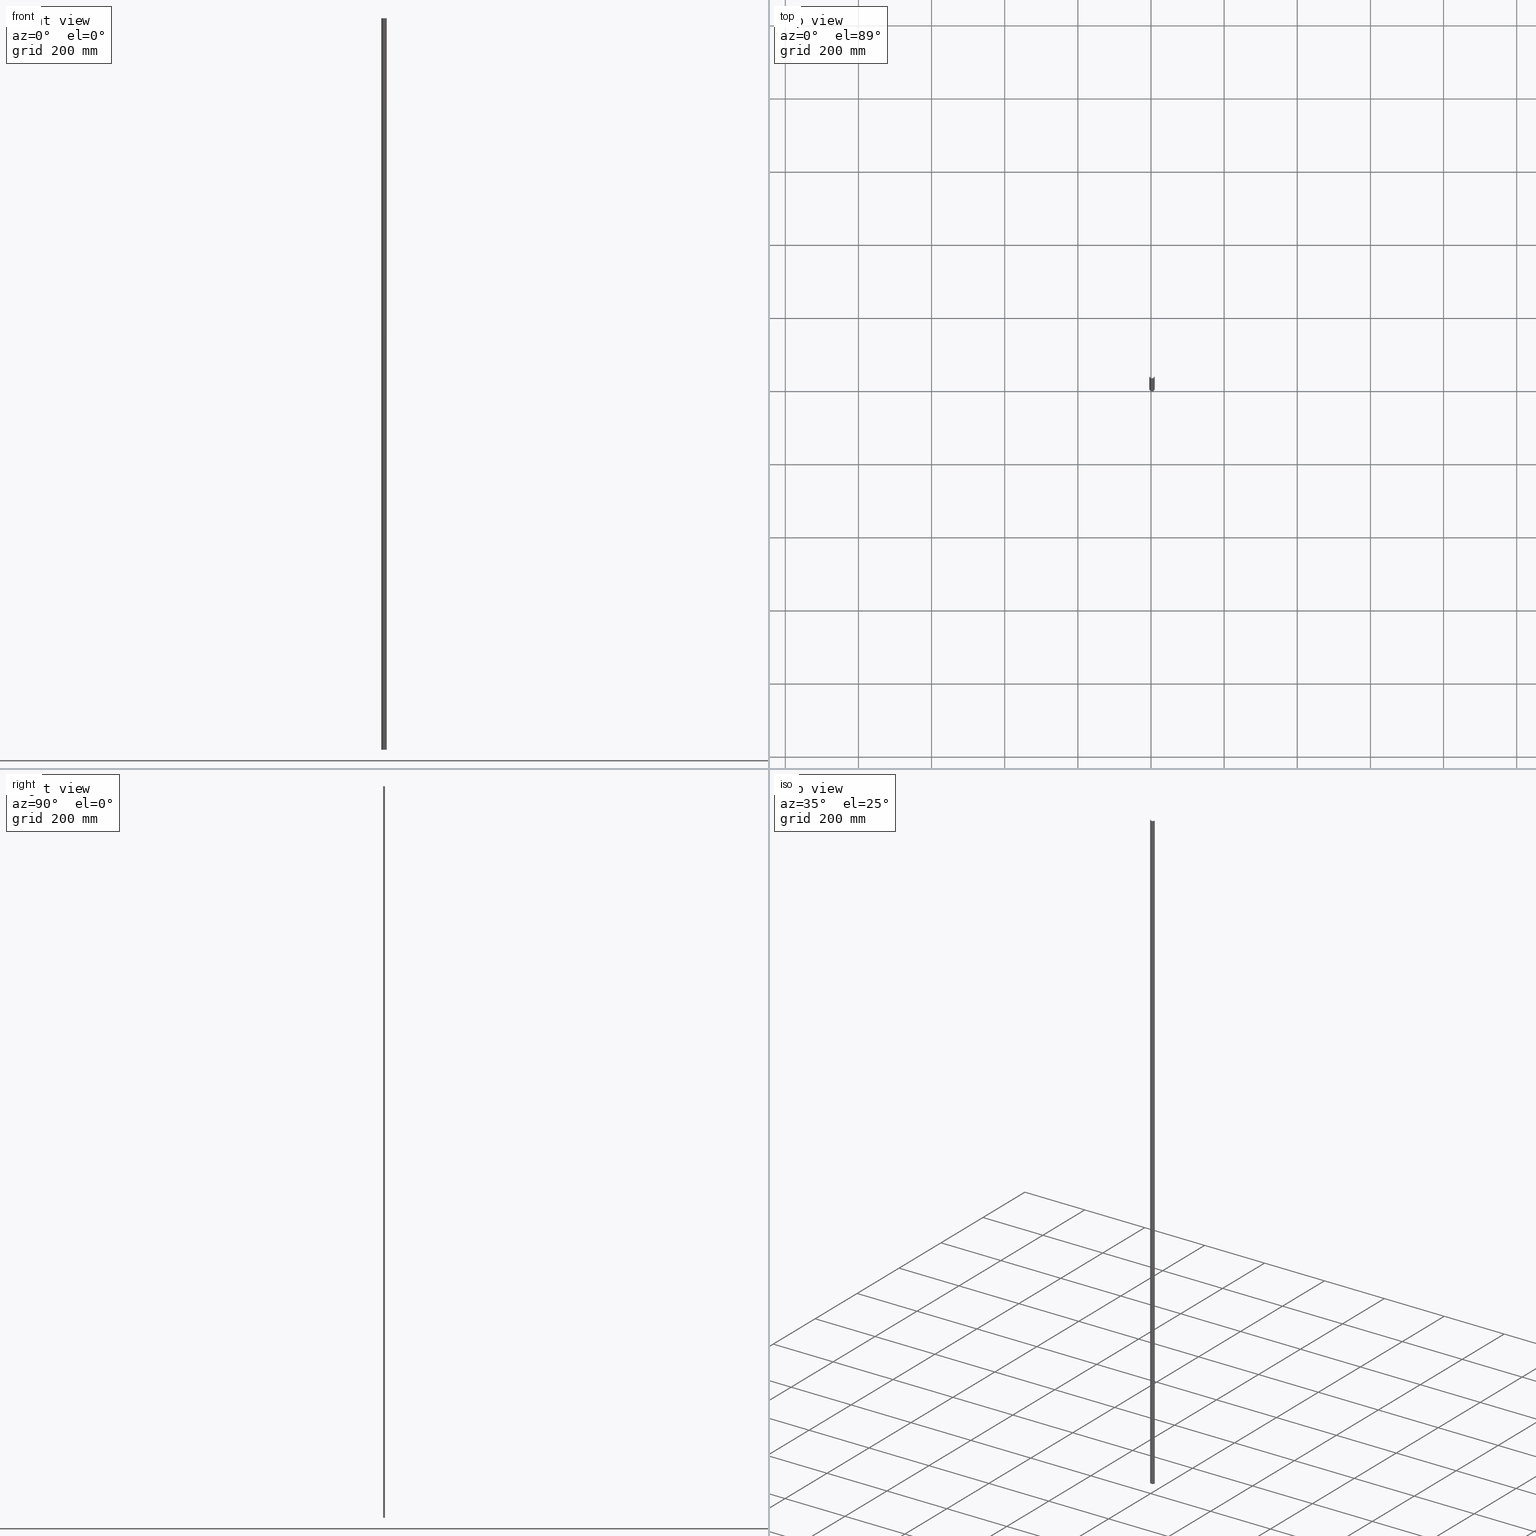
[diagram: canonical four-view strip — front | top / right | iso, engineering-drawing reading convention]
A machine part, canonical four-view strip (front | top / right | iso — engineering-drawing reading convention). The complete STEP part file that produces these views, byte-faithful:
ISO-10303-21;
HEADER;
FILE_DESCRIPTION (( 'STEP AP203' ),
    '1' );
FILE_NAME ('15x5,5 D�z Montaj Raylar� - 2 m.STEP',
    '2019-03-29T08:13:46',
    ( '' ),
    ( '' ),
    'SwSTEP 2.0',
    'SolidWorks 2011',
    '' );
FILE_SCHEMA (( 'CONFIG_CONTROL_DESIGN' ));
ENDSEC;

DATA;
#1 = UNCERTAINTY_MEASURE_WITH_UNIT (LENGTH_MEASURE( 1.000000000000000100E-005 ), #669, 'distance_accuracy_value', 'NONE');
#2 = PRODUCT_DEFINITION_SHAPE ( 'NONE', 'NONE',  #770 ) ;
#3 = DESIGN_CONTEXT ( 'detailed design', #685, 'design' ) ;
#4 = MANIFOLD_SOLID_BREP ( 'Birle�tir1', #114 ) ;
#5 = PRODUCT ( '15x5,5 D�z Montaj Raylar� - 2 m', '15x5,5 D�z Montaj Raylar� - 2 m', '', ( #677 ) ) ;
#6 = AXIS2_PLACEMENT_3D ( 'NONE', #442, #403, #435 ) ;
#7 = VECTOR ( 'NONE', #428, 1000.000000000000000 ) ;
#8 = VECTOR ( 'NONE', #433, 1000.000000000000000 ) ;
#9 = VECTOR ( 'NONE', #443, 1000.000000000000000 ) ;
#10 = VECTOR ( 'NONE', #409, 1000.000000000000000 ) ;
#11 = CIRCLE ( 'NONE', #6, 1.500000000000167000 ) ;
#12 = VECTOR ( 'NONE', #444, 1000.000000000000000 ) ;
#13 = VECTOR ( 'NONE', #456, 1000.000000000000000 ) ;
#14 = VECTOR ( 'NONE', #464, 1000.000000000000000 ) ;
#15 = VECTOR ( 'NONE', #426, 1000.000000000000000 ) ;
#16 = CIRCLE ( 'NONE', #40, 1.500000000000167000 ) ;
#17 = VECTOR ( 'NONE', #528, 1000.000000000000000 ) ;
#18 = AXIS2_PLACEMENT_3D ( 'NONE', #509, #536, #532 ) ;
#19 = AXIS2_PLACEMENT_3D ( 'NONE', #453, #448, #483 ) ;
#20 = VECTOR ( 'NONE', #562, 1000.000000000000000 ) ;
#21 = AXIS2_PLACEMENT_3D ( 'NONE', #570, #556, #585 ) ;
#22 = AXIS2_PLACEMENT_3D ( 'NONE', #572, #574, #581 ) ;
#23 = CIRCLE ( 'NONE', #48, 1.200000000000588600 ) ;
#24 = VECTOR ( 'NONE', #489, 1000.000000000000000 ) ;
#25 = VECTOR ( 'NONE', #472, 1000.000000000000000 ) ;
#26 = VECTOR ( 'NONE', #467, 1000.000000000000000 ) ;
#27 = AXIS2_PLACEMENT_3D ( 'NONE', #466, #469, #486 ) ;
#28 = CIRCLE ( 'NONE', #32, 1.500000000000339500 ) ;
#29 = VECTOR ( 'NONE', #535, 1000.000000000000000 ) ;
#30 = VECTOR ( 'NONE', #533, 1000.000000000000000 ) ;
#31 = VECTOR ( 'NONE', #474, 1000.000000000000000 ) ;
#32 = AXIS2_PLACEMENT_3D ( 'NONE', #507, #516, #491 ) ;
#33 = VECTOR ( 'NONE', #415, 1000.000000000000000 ) ;
#34 = AXIS2_PLACEMENT_3D ( 'NONE', #476, #455, #471 ) ;
#35 = VECTOR ( 'NONE', #583, 1000.000000000000000 ) ;
#36 = VECTOR ( 'NONE', #463, 1000.000000000000000 ) ;
#37 = AXIS2_PLACEMENT_3D ( 'NONE', #502, #521, #531 ) ;
#38 = CIRCLE ( 'NONE', #64, 1.200000000000089900 ) ;
#39 = CIRCLE ( 'NONE', #34, 2.500000000000280700 ) ;
#40 = AXIS2_PLACEMENT_3D ( 'NONE', #406, #430, #423 ) ;
#41 = CIRCLE ( 'NONE', #63, 2.200000000000120100 ) ;
#42 = VECTOR ( 'NONE', #411, 1000.000000000000000 ) ;
#43 = VECTOR ( 'NONE', #461, 1000.000000000000000 ) ;
#44 = VECTOR ( 'NONE', #571, 1000.000000000000000 ) ;
#45 = CIRCLE ( 'NONE', #46, 2.500000000000150500 ) ;
#46 = AXIS2_PLACEMENT_3D ( 'NONE', #576, #537, #539 ) ;
#47 = VECTOR ( 'NONE', #534, 1000.000000000000000 ) ;
#48 = AXIS2_PLACEMENT_3D ( 'NONE', #549, #557, #567 ) ;
#49 = CIRCLE ( 'NONE', #27, 2.200000000000563300 ) ;
#50 = VECTOR ( 'NONE', #543, 1000.000000000000000 ) ;
#51 = CIRCLE ( 'NONE', #53, 2.500000000000280700 ) ;
#52 = VECTOR ( 'NONE', #490, 1000.000000000000000 ) ;
#53 = AXIS2_PLACEMENT_3D ( 'NONE', #575, #541, #544 ) ;
#54 = VECTOR ( 'NONE', #618, 1000.000000000000000 ) ;
#55 = VECTOR ( 'NONE', #413, 1000.000000000000000 ) ;
#56 = VECTOR ( 'NONE', #417, 1000.000000000000000 ) ;
#57 = VECTOR ( 'NONE', #454, 1000.000000000000000 ) ;
#58 = VECTOR ( 'NONE', #458, 1000.000000000000000 ) ;
#59 = CIRCLE ( 'NONE', #19, 2.200000000000120100 ) ;
#60 = VECTOR ( 'NONE', #504, 1000.000000000000000 ) ;
#61 = VECTOR ( 'NONE', #500, 1000.000000000000000 ) ;
#62 = VECTOR ( 'NONE', #485, 1000.000000000000000 ) ;
#63 = AXIS2_PLACEMENT_3D ( 'NONE', #492, #518, #499 ) ;
#64 = AXIS2_PLACEMENT_3D ( 'NONE', #501, #513, #530 ) ;
#65 = AXIS2_PLACEMENT_3D ( 'NONE', #517, #496, #515 ) ;
#66 = VECTOR ( 'NONE', #580, 1000.000000000000000 ) ;
#67 = CIRCLE ( 'NONE', #65, 1.200000000000089900 ) ;
#68 = VECTOR ( 'NONE', #506, 1000.000000000000000 ) ;
#69 = AXIS2_PLACEMENT_3D ( 'NONE', #494, #495, #514 ) ;
#70 = LOCAL_TIME ( 11, 13, 46.00000000000000000, #134 ) ;
#71 = VECTOR ( 'NONE', #627, 1000.000000000000000 ) ;
#72 = AXIS2_PLACEMENT_3D ( 'NONE', #674, #675, #679 ) ;
#73 = AXIS2_PLACEMENT_3D ( 'NONE', #592, #588, #599 ) ;
#74 = AXIS2_PLACEMENT_3D ( 'NONE', #659, #664, #644 ) ;
#75 = AXIS2_PLACEMENT_3D ( 'NONE', #663, #661, #651 ) ;
#76 = APPROVAL_PERSON_ORGANIZATION ( #681, #756, #683 ) ;
#77 = AXIS2_PLACEMENT_3D ( 'NONE', #547, #552, #546 ) ;
#78 = AXIS2_PLACEMENT_3D ( 'NONE', #650, #653, #645 ) ;
#79 = AXIS2_PLACEMENT_3D ( 'NONE', #633, #587, #600 ) ;
#80 = CC_DESIGN_APPROVAL ( #764, ( #93 ) ) ;
#81 = AXIS2_PLACEMENT_3D ( 'NONE', #606, #623, #597 ) ;
#82 = AXIS2_PLACEMENT_3D ( 'NONE', #553, #582, #550 ) ;
#83 = AXIS2_PLACEMENT_3D ( 'NONE', #595, #616, #635 ) ;
#84 = AXIS2_PLACEMENT_3D ( 'NONE', #602, #614, #626 ) ;
#85 = AXIS2_PLACEMENT_3D ( 'NONE', #668, #666, #642 ) ;
#86 = AXIS2_PLACEMENT_3D ( 'NONE', #621, #609, #589 ) ;
#87 = AXIS2_PLACEMENT_3D ( 'NONE', #605, #594, #617 ) ;
#88 =( GEOMETRIC_REPRESENTATION_CONTEXT ( 3 ) GLOBAL_UNCERTAINTY_ASSIGNED_CONTEXT ( ( #1 ) ) GLOBAL_UNIT_ASSIGNED_CONTEXT ( ( #669, #671, #672 ) ) REPRESENTATION_CONTEXT ( 'NONE', 'WORKASPACE' ) );
#89 = AXIS2_PLACEMENT_3D ( 'NONE', #538, #579, #548 ) ;
#90 = LOCAL_TIME ( 11, 13, 46.00000000000000000, #680 ) ;
#91 = LOCAL_TIME ( 11, 13, 46.00000000000000000, #124 ) ;
#92 = APPROVAL_PERSON_ORGANIZATION ( #129, #774, #130 ) ;
#93 = SECURITY_CLASSIFICATION ( '', '', #136 ) ;
#94 = CIRCLE ( 'NONE', #81, 2.200000000000563300 ) ;
#95 = AXIS2_PLACEMENT_3D ( 'NONE', #654, #648, #643 ) ;
#96 = ORGANIZATION ( 'BEL�RT�LMEM��', 'BEL�RT�LMEM��', '' ) ;
#97 = LOCAL_TIME ( 11, 13, 46.00000000000000000, #143 ) ;
#98 = AXIS2_PLACEMENT_3D ( 'NONE', #657, #647, #652 ) ;
#99 = CIRCLE ( 'NONE', #95, 1.200000000000588600 ) ;
#100 = CC_DESIGN_APPROVAL ( #756, ( #770 ) ) ;
#101 = PRODUCT_DEFINITION_FORMATION_WITH_SPECIFIED_SOURCE ( '     Herhangi', '', #5, .NOT_KNOWN. ) ;
#102 = AXIS2_PLACEMENT_3D ( 'NONE', #586, #593, #619 ) ;
#103 = APPROVAL_PERSON_ORGANIZATION ( #131, #764, #154 ) ;
#104 = AXIS2_PLACEMENT_3D ( 'NONE', #638, #649, #665 ) ;
#105 = LOCAL_TIME ( 11, 13, 46.00000000000000000, #151 ) ;
#106 = CC_DESIGN_APPROVAL ( #774, ( #101 ) ) ;
#107 = AXIS2_PLACEMENT_3D ( 'NONE', #610, #601, #598 ) ;
#108 = CC_DESIGN_SECURITY_CLASSIFICATION ( #93, ( #101 ) ) ;
#109 = CIRCLE ( 'NONE', #110, 1.500000000000339500 ) ;
#110 = AXIS2_PLACEMENT_3D ( 'NONE', #400, #363, #361 ) ;
#111 = VECTOR ( 'NONE', #354, 1000.000000000000000 ) ;
#112 = VECTOR ( 'NONE', #412, 1000.000000000000000 ) ;
#113 = AXIS2_PLACEMENT_3D ( 'NONE', #440, #432, #441 ) ;
#114 = CLOSED_SHELL ( 'NONE', ( #776, #771, #739, #778, #777, #761, #772, #734, #737, #753, #769, #744, #773, #759, #751, #736, #752, #750, #779, #767, #765, #754 ) ) ;
#115 = VECTOR ( 'NONE', #374, 1000.000000000000000 ) ;
#116 = VECTOR ( 'NONE', #386, 1000.000000000000000 ) ;
#117 = VECTOR ( 'NONE', #358, 1000.000000000000000 ) ;
#118 = VECTOR ( 'NONE', #366, 1000.000000000000000 ) ;
#119 = CIRCLE ( 'NONE', #113, 2.500000000000150500 ) ;
#120 = VECTOR ( 'NONE', #414, 1000.000000000000000 ) ;
#121 = VECTOR ( 'NONE', #394, 1000.000000000000000 ) ;
#122 = PERSON_AND_ORGANIZATION ( #780, #96 ) ;
#123 = PERSON_AND_ORGANIZATION_ROLE ( 'creator' ) ;
#124 = COORDINATED_UNIVERSAL_TIME_OFFSET ( 3, 0, .AHEAD. ) ;
#125 = CALENDAR_DATE ( 2019, 29, 3 ) ;
#126 = APPROVAL_DATE_TIME ( #127, #756 ) ;
#127 = DATE_AND_TIME ( #125, #90 ) ;
#128 = APPROVAL_STATUS ( 'not_yet_approved' ) ;
#129 = PERSON_AND_ORGANIZATION ( #780, #96 ) ;
#130 = APPROVAL_ROLE ( '' ) ;
#131 = PERSON_AND_ORGANIZATION ( #780, #96 ) ;
#132 = DATE_TIME_ROLE ( 'creation_date' ) ;
#133 = CALENDAR_DATE ( 2019, 29, 3 ) ;
#134 = COORDINATED_UNIVERSAL_TIME_OFFSET ( 3, 0, .AHEAD. ) ;
#135 = CALENDAR_DATE ( 2019, 29, 3 ) ;
#136 = SECURITY_CLASSIFICATION_LEVEL ( 'unclassified' ) ;
#137 = PERSON_AND_ORGANIZATION ( #780, #96 ) ;
#138 = APPROVAL_DATE_TIME ( #139, #774 ) ;
#139 = DATE_AND_TIME ( #142, #105 ) ;
#140 = PERSON_AND_ORGANIZATION ( #780, #96 ) ;
#141 = APPROVAL_DATE_TIME ( #145, #764 ) ;
#142 = CALENDAR_DATE ( 2019, 29, 3 ) ;
#143 = COORDINATED_UNIVERSAL_TIME_OFFSET ( 3, 0, .AHEAD. ) ;
#144 = PERSON_AND_ORGANIZATION ( #780, #96 ) ;
#145 = DATE_AND_TIME ( #133, #97 ) ;
#146 = DATE_AND_TIME ( #149, #70 ) ;
#147 = DATE_TIME_ROLE ( 'classification_date' ) ;
#148 = APPROVAL_STATUS ( 'not_yet_approved' ) ;
#149 = CALENDAR_DATE ( 2019, 29, 3 ) ;
#150 = DATE_AND_TIME ( #135, #91 ) ;
#151 = COORDINATED_UNIVERSAL_TIME_OFFSET ( 3, 0, .AHEAD. ) ;
#152 = PERSON_AND_ORGANIZATION_ROLE ( 'creator' ) ;
#153 = PERSON_AND_ORGANIZATION_ROLE ( 'classification_officer' ) ;
#154 = APPROVAL_ROLE ( '' ) ;
#155 = PERSON_AND_ORGANIZATION_ROLE ( 'design_supplier' ) ;
#156 = CARTESIAN_POINT ( 'NONE',  ( -2.500000000000290000, 3.100000000000202600, 0.0000000000000000000 ) ) ;
#157 = EDGE_LOOP ( 'NONE', ( #244, #263, #249, #281 ) ) ;
#158 = EDGE_LOOP ( 'NONE', ( #318, #265, #319, #324 ) ) ;
#159 = EDGE_LOOP ( 'NONE', ( #241, #282, #267, #225 ) ) ;
#160 = EDGE_LOOP ( 'NONE', ( #233, #254, #237, #257 ) ) ;
#161 = CARTESIAN_POINT ( 'NONE',  ( -3.700000000000881300, 5.300000000000766300, 2000.000000000000000 ) ) ;
#162 = EDGE_LOOP ( 'NONE', ( #320, #306, #314, #279 ) ) ;
#163 = EDGE_LOOP ( 'NONE', ( #308, #325, #278, #347 ) ) ;
#164 = VERTEX_POINT ( 'NONE', #294 ) ;
#165 = VERTEX_POINT ( 'NONE', #303 ) ;
#166 = EDGE_LOOP ( 'NONE', ( #287, #345, #271, #301 ) ) ;
#167 = VERTEX_POINT ( 'NONE', #295 ) ;
#168 = VERTEX_POINT ( 'NONE', #156 ) ;
#169 = VERTEX_POINT ( 'NONE', #161 ) ;
#170 = VERTEX_POINT ( 'NONE', #304 ) ;
#171 = EDGE_LOOP ( 'NONE', ( #231, #250, #243, #246 ) ) ;
#172 = VERTEX_POINT ( 'NONE', #310 ) ;
#173 = EDGE_LOOP ( 'NONE', ( #327, #291, #290, #315, #300, #328, #293, #329, #332, #342, #292, #331, #239, #262, #240, #275, #224, #258, #256, #227 ) ) ;
#174 = EDGE_LOOP ( 'NONE', ( #235, #245, #222, #210 ) ) ;
#175 = VERTEX_POINT ( 'NONE', #343 ) ;
#176 = VERTEX_POINT ( 'NONE', #297 ) ;
#177 = VERTEX_POINT ( 'NONE', #344 ) ;
#178 = VERTEX_POINT ( 'NONE', #302 ) ;
#179 = EDGE_LOOP ( 'NONE', ( #269, #339, #313, #261 ) ) ;
#180 = VERTEX_POINT ( 'NONE', #389 ) ;
#181 = VERTEX_POINT ( 'NONE', #376 ) ;
#182 = EDGE_LOOP ( 'NONE', ( #268, #232, #223, #229 ) ) ;
#183 = VERTEX_POINT ( 'NONE', #399 ) ;
#184 = VERTEX_POINT ( 'NONE', #350 ) ;
#185 = EDGE_LOOP ( 'NONE', ( #285, #311, #296, #336 ) ) ;
#186 = EDGE_LOOP ( 'NONE', ( #238, #234, #251, #247 ) ) ;
#187 = EDGE_LOOP ( 'NONE', ( #277, #253, #270, #260 ) ) ;
#188 = VERTEX_POINT ( 'NONE', #372 ) ;
#189 = VERTEX_POINT ( 'NONE', #360 ) ;
#190 = VERTEX_POINT ( 'NONE', #396 ) ;
#191 = VERTEX_POINT ( 'NONE', #371 ) ;
#192 = VERTEX_POINT ( 'NONE', #383 ) ;
#193 = VERTEX_POINT ( 'NONE', #364 ) ;
#194 = VERTEX_POINT ( 'NONE', #377 ) ;
#195 = VERTEX_POINT ( 'NONE', #352 ) ;
#196 = VERTEX_POINT ( 'NONE', #369 ) ;
#197 = EDGE_LOOP ( 'NONE', ( #333, #264, #280, #309 ) ) ;
#198 = VERTEX_POINT ( 'NONE', #357 ) ;
#199 = VERTEX_POINT ( 'NONE', #355 ) ;
#200 = EDGE_LOOP ( 'NONE', ( #236, #252, #230, #242 ) ) ;
#201 = VERTEX_POINT ( 'NONE', #351 ) ;
#202 = VERTEX_POINT ( 'NONE', #387 ) ;
#203 = VERTEX_POINT ( 'NONE', #375 ) ;
#204 = VERTEX_POINT ( 'NONE', #356 ) ;
#205 = EDGE_LOOP ( 'NONE', ( #259, #226, #274, #273 ) ) ;
#206 = VERTEX_POINT ( 'NONE', #384 ) ;
#207 = VERTEX_POINT ( 'NONE', #378 ) ;
#208 = VERTEX_POINT ( 'NONE', #379 ) ;
#209 = VERTEX_POINT ( 'NONE', #367 ) ;
#210 = ORIENTED_EDGE ( 'NONE', *, *, #768, .F. ) ;
#211 = VERTEX_POINT ( 'NONE', #397 ) ;
#212 = VERTEX_POINT ( 'NONE', #373 ) ;
#213 = EDGE_LOOP ( 'NONE', ( #338, #272, #335, #340 ) ) ;
#214 = VERTEX_POINT ( 'NONE', #385 ) ;
#215 = VERTEX_POINT ( 'NONE', #365 ) ;
#216 = VERTEX_POINT ( 'NONE', #380 ) ;
#217 = EDGE_LOOP ( 'NONE', ( #321, #266, #286, #312, #348, #284, #299, #276, #288, #307, #283, #341, #322, #289, #323, #316, #337, #326, #317, #298 ) ) ;
#218 = EDGE_LOOP ( 'NONE', ( #221, #248, #228, #255 ) ) ;
#219 = VERTEX_POINT ( 'NONE', #353 ) ;
#220 = EDGE_LOOP ( 'NONE', ( #305, #330, #346, #334 ) ) ;
#221 = ORIENTED_EDGE ( 'NONE', *, *, #692, .F. ) ;
#222 = ORIENTED_EDGE ( 'NONE', *, *, #755, .F. ) ;
#223 = ORIENTED_EDGE ( 'NONE', *, *, #711, .F. ) ;
#224 = ORIENTED_EDGE ( 'NONE', *, *, #718, .T. ) ;
#225 = ORIENTED_EDGE ( 'NONE', *, *, #713, .T. ) ;
#226 = ORIENTED_EDGE ( 'NONE', *, *, #714, .F. ) ;
#227 = ORIENTED_EDGE ( 'NONE', *, *, #707, .T. ) ;
#228 = ORIENTED_EDGE ( 'NONE', *, *, #697, .F. ) ;
#229 = ORIENTED_EDGE ( 'NONE', *, *, #726, .T. ) ;
#230 = ORIENTED_EDGE ( 'NONE', *, *, #698, .F. ) ;
#231 = ORIENTED_EDGE ( 'NONE', *, *, #727, .F. ) ;
#232 = ORIENTED_EDGE ( 'NONE', *, *, #688, .F. ) ;
#233 = ORIENTED_EDGE ( 'NONE', *, *, #729, .F. ) ;
#234 = ORIENTED_EDGE ( 'NONE', *, *, #715, .F. ) ;
#235 = ORIENTED_EDGE ( 'NONE', *, *, #693, .F. ) ;
#236 = ORIENTED_EDGE ( 'NONE', *, *, #702, .F. ) ;
#237 = ORIENTED_EDGE ( 'NONE', *, *, #732, .F. ) ;
#238 = ORIENTED_EDGE ( 'NONE', *, *, #720, .T. ) ;
#239 = ORIENTED_EDGE ( 'NONE', *, *, #704, .F. ) ;
#240 = ORIENTED_EDGE ( 'NONE', *, *, #719, .F. ) ;
#241 = ORIENTED_EDGE ( 'NONE', *, *, #723, .F. ) ;
#242 = ORIENTED_EDGE ( 'NONE', *, *, #714, .T. ) ;
#243 = ORIENTED_EDGE ( 'NONE', *, *, #700, .T. ) ;
#244 = ORIENTED_EDGE ( 'NONE', *, *, #710, .T. ) ;
#245 = ORIENTED_EDGE ( 'NONE', *, *, #738, .F. ) ;
#246 = ORIENTED_EDGE ( 'NONE', *, *, #717, .F. ) ;
#247 = ORIENTED_EDGE ( 'NONE', *, *, #707, .F. ) ;
#248 = ORIENTED_EDGE ( 'NONE', *, *, #733, .T. ) ;
#249 = ORIENTED_EDGE ( 'NONE', *, *, #749, .T. ) ;
#250 = ORIENTED_EDGE ( 'NONE', *, *, #689, .F. ) ;
#251 = ORIENTED_EDGE ( 'NONE', *, *, #712, .F. ) ;
#252 = ORIENTED_EDGE ( 'NONE', *, *, #716, .T. ) ;
#253 = ORIENTED_EDGE ( 'NONE', *, *, #713, .F. ) ;
#254 = ORIENTED_EDGE ( 'NONE', *, *, #686, .F. ) ;
#255 = ORIENTED_EDGE ( 'NONE', *, *, #687, .F. ) ;
#256 = ORIENTED_EDGE ( 'NONE', *, *, #730, .F. ) ;
#257 = ORIENTED_EDGE ( 'NONE', *, *, #716, .F. ) ;
#258 = ORIENTED_EDGE ( 'NONE', *, *, #697, .T. ) ;
#259 = ORIENTED_EDGE ( 'NONE', *, *, #721, .F. ) ;
#260 = ORIENTED_EDGE ( 'NONE', *, *, #696, .F. ) ;
#261 = ORIENTED_EDGE ( 'NONE', *, *, #726, .F. ) ;
#262 = ORIENTED_EDGE ( 'NONE', *, *, #689, .T. ) ;
#263 = ORIENTED_EDGE ( 'NONE', *, *, #738, .T. ) ;
#264 = ORIENTED_EDGE ( 'NONE', *, *, #686, .T. ) ;
#265 = ORIENTED_EDGE ( 'NONE', *, *, #720, .F. ) ;
#266 = ORIENTED_EDGE ( 'NONE', *, *, #703, .T. ) ;
#267 = ORIENTED_EDGE ( 'NONE', *, *, #718, .F. ) ;
#268 = ORIENTED_EDGE ( 'NONE', *, *, #695, .F. ) ;
#269 = ORIENTED_EDGE ( 'NONE', *, *, #691, .F. ) ;
#270 = ORIENTED_EDGE ( 'NONE', *, *, #725, .F. ) ;
#271 = ORIENTED_EDGE ( 'NONE', *, *, #731, .F. ) ;
#272 = ORIENTED_EDGE ( 'NONE', *, *, #700, .F. ) ;
#273 = ORIENTED_EDGE ( 'NONE', *, *, #690, .T. ) ;
#274 = ORIENTED_EDGE ( 'NONE', *, *, #705, .F. ) ;
#275 = ORIENTED_EDGE ( 'NONE', *, *, #725, .T. ) ;
#276 = ORIENTED_EDGE ( 'NONE', *, *, #721, .T. ) ;
#277 = ORIENTED_EDGE ( 'NONE', *, *, #706, .F. ) ;
#278 = ORIENTED_EDGE ( 'NONE', *, *, #709, .T. ) ;
#279 = ORIENTED_EDGE ( 'NONE', *, *, #748, .T. ) ;
#280 = ORIENTED_EDGE ( 'NONE', *, *, #766, .F. ) ;
#281 = ORIENTED_EDGE ( 'NONE', *, *, #740, .T. ) ;
#282 = ORIENTED_EDGE ( 'NONE', *, *, #687, .T. ) ;
#283 = ORIENTED_EDGE ( 'NONE', *, *, #749, .F. ) ;
#284 = ORIENTED_EDGE ( 'NONE', *, *, #729, .T. ) ;
#285 = ORIENTED_EDGE ( 'NONE', *, *, #694, .T. ) ;
#286 = ORIENTED_EDGE ( 'NONE', *, *, #691, .T. ) ;
#287 = ORIENTED_EDGE ( 'NONE', *, *, #719, .T. ) ;
#288 = ORIENTED_EDGE ( 'NONE', *, *, #775, .T. ) ;
#289 = ORIENTED_EDGE ( 'NONE', *, *, #715, .T. ) ;
#290 = ORIENTED_EDGE ( 'NONE', *, *, #710, .F. ) ;
#291 = ORIENTED_EDGE ( 'NONE', *, *, #755, .T. ) ;
#292 = ORIENTED_EDGE ( 'NONE', *, *, #724, .F. ) ;
#293 = ORIENTED_EDGE ( 'NONE', *, *, #698, .T. ) ;
#294 = CARTESIAN_POINT ( 'NONE',  ( -3.700000000000618800, 4.300000000000789400, 0.0000000000000000000 ) ) ;
#295 = CARTESIAN_POINT ( 'NONE',  ( 10.24999999999941000, 4.300000000000003400, 2000.000000000000000 ) ) ;
#296 = ORIENTED_EDGE ( 'NONE', *, *, #745, .F. ) ;
#297 = CARTESIAN_POINT ( 'NONE',  ( 5.499999999999274400, 1.299999999999992700, 2000.000000000000000 ) ) ;
#298 = ORIENTED_EDGE ( 'NONE', *, *, #717, .T. ) ;
#299 = ORIENTED_EDGE ( 'NONE', *, *, #702, .T. ) ;
#300 = ORIENTED_EDGE ( 'NONE', *, *, #747, .F. ) ;
#301 = ORIENTED_EDGE ( 'NONE', *, *, #696, .T. ) ;
#302 = CARTESIAN_POINT ( 'NONE',  ( -8.443996105043881800E-015, 0.2999999999999992700, 0.0000000000000000000 ) ) ;
#303 = CARTESIAN_POINT ( 'NONE',  ( 6.999999999999385400, 2.800000000000133900, 2000.000000000000000 ) ) ;
#304 = CARTESIAN_POINT ( 'NONE',  ( 7.999999999999406700, 2.800000000000187700, 2000.000000000000000 ) ) ;
#305 = ORIENTED_EDGE ( 'NONE', *, *, #746, .F. ) ;
#306 = ORIENTED_EDGE ( 'NONE', *, *, #690, .F. ) ;
#307 = ORIENTED_EDGE ( 'NONE', *, *, #746, .T. ) ;
#308 = ORIENTED_EDGE ( 'NONE', *, *, #703, .F. ) ;
#309 = ORIENTED_EDGE ( 'NONE', *, *, #688, .T. ) ;
#310 = CARTESIAN_POINT ( 'NONE',  ( 7.999999999999386300, 3.099999999999913500, 0.0000000000000000000 ) ) ;
#311 = ORIENTED_EDGE ( 'NONE', *, *, #712, .T. ) ;
#312 = ORIENTED_EDGE ( 'NONE', *, *, #711, .T. ) ;
#313 = ORIENTED_EDGE ( 'NONE', *, *, #724, .T. ) ;
#314 = ORIENTED_EDGE ( 'NONE', *, *, #747, .T. ) ;
#315 = ORIENTED_EDGE ( 'NONE', *, *, #743, .F. ) ;
#316 = ORIENTED_EDGE ( 'NONE', *, *, #692, .T. ) ;
#317 = ORIENTED_EDGE ( 'NONE', *, *, #731, .T. ) ;
#318 = ORIENTED_EDGE ( 'NONE', *, *, #728, .F. ) ;
#319 = ORIENTED_EDGE ( 'NONE', *, *, #730, .T. ) ;
#320 = ORIENTED_EDGE ( 'NONE', *, *, #775, .F. ) ;
#321 = ORIENTED_EDGE ( 'NONE', *, *, #699, .T. ) ;
#322 = ORIENTED_EDGE ( 'NONE', *, *, #745, .T. ) ;
#323 = ORIENTED_EDGE ( 'NONE', *, *, #728, .T. ) ;
#324 = ORIENTED_EDGE ( 'NONE', *, *, #733, .F. ) ;
#325 = ORIENTED_EDGE ( 'NONE', *, *, #701, .F. ) ;
#326 = ORIENTED_EDGE ( 'NONE', *, *, #706, .T. ) ;
#327 = ORIENTED_EDGE ( 'NONE', *, *, #694, .F. ) ;
#328 = ORIENTED_EDGE ( 'NONE', *, *, #705, .T. ) ;
#329 = ORIENTED_EDGE ( 'NONE', *, *, #732, .T. ) ;
#330 = ORIENTED_EDGE ( 'NONE', *, *, #748, .F. ) ;
#331 = ORIENTED_EDGE ( 'NONE', *, *, #709, .F. ) ;
#332 = ORIENTED_EDGE ( 'NONE', *, *, #722, .F. ) ;
#333 = ORIENTED_EDGE ( 'NONE', *, *, #722, .T. ) ;
#334 = ORIENTED_EDGE ( 'NONE', *, *, #740, .F. ) ;
#335 = ORIENTED_EDGE ( 'NONE', *, *, #704, .T. ) ;
#336 = ORIENTED_EDGE ( 'NONE', *, *, #768, .T. ) ;
#337 = ORIENTED_EDGE ( 'NONE', *, *, #723, .T. ) ;
#338 = ORIENTED_EDGE ( 'NONE', *, *, #699, .F. ) ;
#339 = ORIENTED_EDGE ( 'NONE', *, *, #708, .F. ) ;
#340 = ORIENTED_EDGE ( 'NONE', *, *, #701, .T. ) ;
#341 = ORIENTED_EDGE ( 'NONE', *, *, #693, .T. ) ;
#342 = ORIENTED_EDGE ( 'NONE', *, *, #695, .T. ) ;
#343 = CARTESIAN_POINT ( 'NONE',  ( 9.199999999999461100, 5.300000000000021100, 0.0000000000000000000 ) ) ;
#344 = CARTESIAN_POINT ( 'NONE',  ( 6.999999999999342700, 3.099999999999913500, 0.0000000000000000000 ) ) ;
#345 = ORIENTED_EDGE ( 'NONE', *, *, #727, .T. ) ;
#346 = ORIENTED_EDGE ( 'NONE', *, *, #743, .T. ) ;
#347 = ORIENTED_EDGE ( 'NONE', *, *, #708, .T. ) ;
#348 = ORIENTED_EDGE ( 'NONE', *, *, #766, .T. ) ;
#349 = LINE ( 'NONE', #395, #111 ) ;
#350 = CARTESIAN_POINT ( 'NONE',  ( -8.443996105043881800E-015, 0.2999999999999992700, 2000.000000000000000 ) ) ;
#351 = CARTESIAN_POINT ( 'NONE',  ( -2.500000000000289500, 2.800000000000279600, 0.0000000000000000000 ) ) ;
#352 = CARTESIAN_POINT ( 'NONE',  ( -1.500000000000317500, 3.100000000000203500, 0.0000000000000000000 ) ) ;
#353 = CARTESIAN_POINT ( 'NONE',  ( 9.199999999999475300, 4.300000000000003400, 0.0000000000000000000 ) ) ;
#354 = DIRECTION ( 'NONE',  ( 1.000000000000000000, 0.0000000000000000000, -0.0000000000000000000 ) ) ;
#355 = CARTESIAN_POINT ( 'NONE',  ( 5.499999999999305400, 0.3000000000000183600, 0.0000000000000000000 ) ) ;
#356 = CARTESIAN_POINT ( 'NONE',  ( 10.24999999999941000, 5.300000000000008700, 0.0000000000000000000 ) ) ;
#357 = CARTESIAN_POINT ( 'NONE',  ( 7.999999999999386300, 3.099999999999913500, 2000.000000000000000 ) ) ;
#358 = DIRECTION ( 'NONE',  ( -0.0000000000000000000, 0.0000000000000000000, -1.000000000000000000 ) ) ;
#359 = LINE ( 'NONE', #362, #120 ) ;
#360 = CARTESIAN_POINT ( 'NONE',  ( -4.750000000000827800, 4.300000000000787600, 2000.000000000000000 ) ) ;
#361 = DIRECTION ( 'NONE',  ( -1.000000000000000000, 0.0000000000000000000, 0.0000000000000000000 ) ) ;
#362 = CARTESIAN_POINT ( 'NONE',  ( -3.700000000000881300, 0.2999999999999994900, 2000.000000000000000 ) ) ;
#363 = DIRECTION ( 'NONE',  ( -0.0000000000000000000, -0.0000000000000000000, -1.000000000000000000 ) ) ;
#364 = CARTESIAN_POINT ( 'NONE',  ( -1.500000000000332600, 2.800000000000279600, 0.0000000000000000000 ) ) ;
#365 = CARTESIAN_POINT ( 'NONE',  ( -4.750000000000827800, 5.300000000000766300, 2000.000000000000000 ) ) ;
#366 = DIRECTION ( 'NONE',  ( 0.0000000000000000000, 1.000000000000000000, 0.0000000000000000000 ) ) ;
#367 = CARTESIAN_POINT ( 'NONE',  ( 10.24999999999941000, 5.300000000000008700, 2000.000000000000000 ) ) ;
#368 = CARTESIAN_POINT ( 'NONE',  ( 10.24999999999941000, 4.300000000000003400, 2000.000000000000000 ) ) ;
#369 = CARTESIAN_POINT ( 'NONE',  ( -3.700000000000618800, 4.300000000000789400, 2000.000000000000000 ) ) ;
#370 = CARTESIAN_POINT ( 'NONE',  ( -3.700000000000881300, 5.300000000000766300, 2000.000000000000000 ) ) ;
#371 = CARTESIAN_POINT ( 'NONE',  ( 6.999999999999385400, 2.800000000000133900, 0.0000000000000000000 ) ) ;
#372 = CARTESIAN_POINT ( 'NONE',  ( 9.199999999999475300, 4.300000000000003400, 2000.000000000000000 ) ) ;
#373 = CARTESIAN_POINT ( 'NONE',  ( -2.500000000000289500, 2.800000000000279600, 2000.000000000000000 ) ) ;
#374 = DIRECTION ( 'NONE',  ( 0.0000000000000000000, 0.0000000000000000000, 1.000000000000000000 ) ) ;
#375 = CARTESIAN_POINT ( 'NONE',  ( -8.673617379884035500E-015, 1.299999999999908800, 0.0000000000000000000 ) ) ;
#376 = CARTESIAN_POINT ( 'NONE',  ( 5.499999999999274400, 1.299999999999964700, 0.0000000000000000000 ) ) ;
#377 = CARTESIAN_POINT ( 'NONE',  ( -4.750000000000827800, 4.300000000000787600, 0.0000000000000000000 ) ) ;
#378 = CARTESIAN_POINT ( 'NONE',  ( 7.999999999999406700, 2.800000000000187700, 0.0000000000000000000 ) ) ;
#379 = CARTESIAN_POINT ( 'NONE',  ( -2.500000000000290000, 3.100000000000202600, 2000.000000000000000 ) ) ;
#380 = CARTESIAN_POINT ( 'NONE',  ( 6.999999999999342700, 3.099999999999913500, 2000.000000000000000 ) ) ;
#381 = CARTESIAN_POINT ( 'NONE',  ( -1.500000000000318000, 3.100000000000204400, 2000.000000000000000 ) ) ;
#382 = LINE ( 'NONE', #370, #115 ) ;
#383 = CARTESIAN_POINT ( 'NONE',  ( -1.500000000000317500, 3.100000000000203500, 2000.000000000000000 ) ) ;
#384 = CARTESIAN_POINT ( 'NONE',  ( 9.199999999999461100, 5.300000000000021100, 2000.000000000000000 ) ) ;
#385 = CARTESIAN_POINT ( 'NONE',  ( 10.24999999999941000, 4.300000000000003400, 0.0000000000000000000 ) ) ;
#386 = DIRECTION ( 'NONE',  ( -0.0000000000000000000, -0.0000000000000000000, -1.000000000000000000 ) ) ;
#387 = CARTESIAN_POINT ( 'NONE',  ( -1.500000000000332600, 2.800000000000279600, 2000.000000000000000 ) ) ;
#388 = LINE ( 'NONE', #368, #117 ) ;
#389 = CARTESIAN_POINT ( 'NONE',  ( -4.750000000000827800, 5.300000000000766300, 0.0000000000000000000 ) ) ;
#390 = LINE ( 'NONE', #392, #118 ) ;
#391 = LINE ( 'NONE', #381, #116 ) ;
#392 = CARTESIAN_POINT ( 'NONE',  ( 6.999999999999329400, 3.399999999999913300, 0.0000000000000000000 ) ) ;
#393 = CARTESIAN_POINT ( 'NONE',  ( -3.700000000000355900, 4.300000000000791200, 2000.000000000000000 ) ) ;
#394 = DIRECTION ( 'NONE',  ( 0.0000000000000000000, 0.0000000000000000000, 1.000000000000000000 ) ) ;
#395 = CARTESIAN_POINT ( 'NONE',  ( 9.199999999999475300, 4.300000000000003400, 2000.000000000000000 ) ) ;
#396 = CARTESIAN_POINT ( 'NONE',  ( 5.499999999999305400, 0.3000000000000183600, 2000.000000000000000 ) ) ;
#397 = CARTESIAN_POINT ( 'NONE',  ( -3.700000000000881300, 5.300000000000766300, 0.0000000000000000000 ) ) ;
#398 = LINE ( 'NONE', #393, #121 ) ;
#399 = CARTESIAN_POINT ( 'NONE',  ( -8.673617379884035500E-015, 1.299999999999936800, 2000.000000000000000 ) ) ;
#400 = CARTESIAN_POINT ( 'NONE',  ( -8.673617379884035500E-015, 2.800000000000279600, 2000.000000000000000 ) ) ;
#401 = LINE ( 'NONE', #402, #15 ) ;
#402 = CARTESIAN_POINT ( 'NONE',  ( -3.700000000000881300, 1.299999999999964700, 2000.000000000000000 ) ) ;
#403 = DIRECTION ( 'NONE',  ( -0.0000000000000000000, -0.0000000000000000000, -1.000000000000000000 ) ) ;
#404 = LINE ( 'NONE', #410, #42 ) ;
#405 = LINE ( 'NONE', #418, #12 ) ;
#406 = CARTESIAN_POINT ( 'NONE',  ( 5.499999999999274400, 2.800000000000187700, 0.0000000000000000000 ) ) ;
#407 = LINE ( 'NONE', #425, #112 ) ;
#408 = LINE ( 'NONE', #421, #9 ) ;
#409 = DIRECTION ( 'NONE',  ( 0.0000000000000000000, 1.000000000000000000, 0.0000000000000000000 ) ) ;
#410 = CARTESIAN_POINT ( 'NONE',  ( -4.750000000000827800, 4.300000000000787600, 0.0000000000000000000 ) ) ;
#411 = DIRECTION ( 'NONE',  ( -1.000000000000000000, -0.0000000000000000000, 0.0000000000000000000 ) ) ;
#412 = DIRECTION ( 'NONE',  ( -0.0000000000000000000, -1.000000000000000000, 0.0000000000000000000 ) ) ;
#413 = DIRECTION ( 'NONE',  ( -0.0000000000000000000, -1.000000000000000000, -0.0000000000000000000 ) ) ;
#414 = DIRECTION ( 'NONE',  ( 1.000000000000000000, 0.0000000000000000000, -0.0000000000000000000 ) ) ;
#415 = DIRECTION ( 'NONE',  ( -0.0000000000000000000, -1.000000000000000000, 0.0000000000000000000 ) ) ;
#416 = CARTESIAN_POINT ( 'NONE',  ( 10.24999999999941000, 5.300000000000007800, 2000.000000000000000 ) ) ;
#417 = DIRECTION ( 'NONE',  ( -1.000000000000000000, -0.0000000000000000000, -0.0000000000000000000 ) ) ;
#418 = CARTESIAN_POINT ( 'NONE',  ( 6.999999999999441300, 2.800000000000080200, 2000.000000000000000 ) ) ;
#419 = CARTESIAN_POINT ( 'NONE',  ( -4.750000000000827800, 5.300000000000766300, 0.0000000000000000000 ) ) ;
#420 = CARTESIAN_POINT ( 'NONE',  ( -8.673617379884035500E-015, 1.299999999999908800, 2000.000000000000000 ) ) ;
#421 = CARTESIAN_POINT ( 'NONE',  ( 9.199999999999475300, 4.300000000000003400, 0.0000000000000000000 ) ) ;
#422 = CARTESIAN_POINT ( 'NONE',  ( -4.750000000000827800, 5.300000000000766300, 2000.000000000000000 ) ) ;
#423 = DIRECTION ( 'NONE',  ( -1.000000000000000000, 0.0000000000000000000, 0.0000000000000000000 ) ) ;
#424 = CARTESIAN_POINT ( 'NONE',  ( 9.199999999999445100, 5.300000000000033600, 2000.000000000000000 ) ) ;
#425 = CARTESIAN_POINT ( 'NONE',  ( -1.500000000000317100, 3.100000000000208400, 0.0000000000000000000 ) ) ;
#426 = DIRECTION ( 'NONE',  ( -1.000000000000000000, -0.0000000000000000000, 0.0000000000000000000 ) ) ;
#427 = LINE ( 'NONE', #419, #10 ) ;
#428 = DIRECTION ( 'NONE',  ( 0.0000000000000000000, 0.0000000000000000000, 1.000000000000000000 ) ) ;
#429 = LINE ( 'NONE', #424, #8 ) ;
#430 = DIRECTION ( 'NONE',  ( -0.0000000000000000000, -0.0000000000000000000, -1.000000000000000000 ) ) ;
#431 = LINE ( 'NONE', #416, #56 ) ;
#432 = DIRECTION ( 'NONE',  ( 0.0000000000000000000, 0.0000000000000000000, 1.000000000000000000 ) ) ;
#433 = DIRECTION ( 'NONE',  ( -0.0000000000000000000, -0.0000000000000000000, -1.000000000000000000 ) ) ;
#434 = CARTESIAN_POINT ( 'NONE',  ( 5.499999999999274400, 1.300000000000020700, 2000.000000000000000 ) ) ;
#435 = DIRECTION ( 'NONE',  ( -1.000000000000000000, 0.0000000000000000000, 0.0000000000000000000 ) ) ;
#436 = LINE ( 'NONE', #468, #57 ) ;
#437 = LINE ( 'NONE', #438, #33 ) ;
#438 = CARTESIAN_POINT ( 'NONE',  ( 7.999999999999388000, 2.800000000000187700, 0.0000000000000000000 ) ) ;
#439 = LINE ( 'NONE', #420, #25 ) ;
#440 = CARTESIAN_POINT ( 'NONE',  ( 5.499999999999274400, 2.800000000000187700, 0.0000000000000000000 ) ) ;
#441 = DIRECTION ( 'NONE',  ( -1.000000000000000000, 8.673617379883512900E-016, 0.0000000000000000000 ) ) ;
#442 = CARTESIAN_POINT ( 'NONE',  ( 5.499999999999274400, 2.800000000000187700, 2000.000000000000000 ) ) ;
#443 = DIRECTION ( 'NONE',  ( -1.000000000000000000, -0.0000000000000000000, 0.0000000000000000000 ) ) ;
#444 = DIRECTION ( 'NONE',  ( 0.0000000000000000000, 0.0000000000000000000, 1.000000000000000000 ) ) ;
#445 = LINE ( 'NONE', #434, #7 ) ;
#446 = LINE ( 'NONE', #422, #55 ) ;
#447 = LINE ( 'NONE', #457, #24 ) ;
#448 = DIRECTION ( 'NONE',  ( 0.0000000000000000000, 0.0000000000000000000, 1.000000000000000000 ) ) ;
#449 = LINE ( 'NONE', #460, #14 ) ;
#450 = LINE ( 'NONE', #478, #36 ) ;
#451 = LINE ( 'NONE', #488, #43 ) ;
#452 = CARTESIAN_POINT ( 'NONE',  ( -1.500000000000317100, 3.100000000000208400, 2000.000000000000000 ) ) ;
#453 = CARTESIAN_POINT ( 'NONE',  ( 9.199999999999475300, 3.099999999999913500, 0.0000000000000000000 ) ) ;
#454 = DIRECTION ( 'NONE',  ( -1.000000000000000000, -0.0000000000000000000, -0.0000000000000000000 ) ) ;
#455 = DIRECTION ( 'NONE',  ( 0.0000000000000000000, 0.0000000000000000000, 1.000000000000000000 ) ) ;
#456 = DIRECTION ( 'NONE',  ( 0.0000000000000000000, 1.000000000000000000, -0.0000000000000000000 ) ) ;
#457 = CARTESIAN_POINT ( 'NONE',  ( 6.999999999999329400, 3.399999999999913300, 2000.000000000000000 ) ) ;
#458 = DIRECTION ( 'NONE',  ( 0.0000000000000000000, -0.0000000000000000000, -1.000000000000000000 ) ) ;
#459 = CARTESIAN_POINT ( 'NONE',  ( -4.750000000000827800, 4.300000000000787600, 2000.000000000000000 ) ) ;
#460 = CARTESIAN_POINT ( 'NONE',  ( 7.999999999999386300, 3.099999999999913500, 2000.000000000000000 ) ) ;
#461 = DIRECTION ( 'NONE',  ( 0.0000000000000000000, 1.000000000000000000, -0.0000000000000000000 ) ) ;
#462 = LINE ( 'NONE', #482, #61 ) ;
#463 = DIRECTION ( 'NONE',  ( -0.0000000000000000000, -1.000000000000000000, 0.0000000000000000000 ) ) ;
#464 = DIRECTION ( 'NONE',  ( 0.0000000000000000000, 0.0000000000000000000, 1.000000000000000000 ) ) ;
#465 = LINE ( 'NONE', #459, #62 ) ;
#466 = CARTESIAN_POINT ( 'NONE',  ( -3.700000000000881300, 3.100000000000202600, 0.0000000000000000000 ) ) ;
#467 = DIRECTION ( 'NONE',  ( 0.0000000000000000000, 0.0000000000000000000, 1.000000000000000000 ) ) ;
#468 = CARTESIAN_POINT ( 'NONE',  ( 5.499999999999274400, 1.299999999999908800, 0.0000000000000000000 ) ) ;
#469 = DIRECTION ( 'NONE',  ( 0.0000000000000000000, 0.0000000000000000000, 1.000000000000000000 ) ) ;
#470 = CARTESIAN_POINT ( 'NONE',  ( -4.750000000000827800, 4.300000000000787600, 2000.000000000000000 ) ) ;
#471 = DIRECTION ( 'NONE',  ( -1.000000000000000000, 0.0000000000000000000, 0.0000000000000000000 ) ) ;
#472 = DIRECTION ( 'NONE',  ( -0.0000000000000000000, 0.0000000000000000000, 1.000000000000000000 ) ) ;
#473 = CARTESIAN_POINT ( 'NONE',  ( 7.999999999999424500, 2.800000000000188100, 2000.000000000000000 ) ) ;
#474 = DIRECTION ( 'NONE',  ( 1.000000000000000000, 0.0000000000000000000, -0.0000000000000000000 ) ) ;
#475 = LINE ( 'NONE', #484, #58 ) ;
#476 = CARTESIAN_POINT ( 'NONE',  ( -8.673617379884035500E-015, 2.800000000000279600, 0.0000000000000000000 ) ) ;
#477 = CARTESIAN_POINT ( 'NONE',  ( 10.24999999999941000, 5.300000000000007800, 2000.000000000000000 ) ) ;
#478 = CARTESIAN_POINT ( 'NONE',  ( 10.24999999999941000, 4.300000000000003400, 0.0000000000000000000 ) ) ;
#479 = LINE ( 'NONE', #477, #52 ) ;
#480 = LINE ( 'NONE', #470, #31 ) ;
#481 = LINE ( 'NONE', #473, #26 ) ;
#482 = CARTESIAN_POINT ( 'NONE',  ( 10.24999999999941000, 4.300000000000003400, 2000.000000000000000 ) ) ;
#483 = DIRECTION ( 'NONE',  ( -1.000000000000000000, 0.0000000000000000000, 0.0000000000000000000 ) ) ;
#484 = CARTESIAN_POINT ( 'NONE',  ( -4.750000000000827800, 5.300000000000766300, 2000.000000000000000 ) ) ;
#485 = DIRECTION ( 'NONE',  ( 0.0000000000000000000, -0.0000000000000000000, 1.000000000000000000 ) ) ;
#486 = DIRECTION ( 'NONE',  ( -1.000000000000000000, 0.0000000000000000000, 0.0000000000000000000 ) ) ;
#487 = LINE ( 'NONE', #452, #13 ) ;
#488 = CARTESIAN_POINT ( 'NONE',  ( 7.999999999999388000, 2.800000000000187700, 2000.000000000000000 ) ) ;
#489 = DIRECTION ( 'NONE',  ( -0.0000000000000000000, -1.000000000000000000, -0.0000000000000000000 ) ) ;
#490 = DIRECTION ( 'NONE',  ( -0.0000000000000000000, 0.0000000000000000000, 1.000000000000000000 ) ) ;
#491 = DIRECTION ( 'NONE',  ( -1.000000000000000000, 0.0000000000000000000, 0.0000000000000000000 ) ) ;
#492 = CARTESIAN_POINT ( 'NONE',  ( 9.199999999999475300, 3.099999999999913500, 2000.000000000000000 ) ) ;
#493 = PLANE ( 'NONE',  #69 ) ;
#494 = CARTESIAN_POINT ( 'NONE',  ( 7.999999999999388000, 2.800000000000187700, 2000.000000000000000 ) ) ;
#495 = DIRECTION ( 'NONE',  ( -1.000000000000000000, 0.0000000000000000000, 0.0000000000000000000 ) ) ;
#496 = DIRECTION ( 'NONE',  ( -0.0000000000000000000, -0.0000000000000000000, -1.000000000000000000 ) ) ;
#497 = LINE ( 'NONE', #526, #60 ) ;
#498 = CARTESIAN_POINT ( 'NONE',  ( 6.999999999999356100, 3.099999999999913500, 2000.000000000000000 ) ) ;
#499 = DIRECTION ( 'NONE',  ( -1.000000000000000000, 0.0000000000000000000, 0.0000000000000000000 ) ) ;
#500 = DIRECTION ( 'NONE',  ( 0.0000000000000000000, 1.000000000000000000, -0.0000000000000000000 ) ) ;
#501 = CARTESIAN_POINT ( 'NONE',  ( 9.199999999999475300, 3.099999999999913500, 2000.000000000000000 ) ) ;
#502 = CARTESIAN_POINT ( 'NONE',  ( -4.750000000000827800, 4.300000000000787600, 2000.000000000000000 ) ) ;
#503 = CARTESIAN_POINT ( 'NONE',  ( -1.500000000000348200, 2.800000000000279600, 2000.000000000000000 ) ) ;
#504 = DIRECTION ( 'NONE',  ( 1.000000000000000000, 0.0000000000000000000, 0.0000000000000000000 ) ) ;
#505 = LINE ( 'NONE', #503, #30 ) ;
#506 = DIRECTION ( 'NONE',  ( 1.000000000000000000, 0.0000000000000000000, 0.0000000000000000000 ) ) ;
#507 = CARTESIAN_POINT ( 'NONE',  ( -8.673617379884035500E-015, 2.800000000000279600, 0.0000000000000000000 ) ) ;
#508 = LINE ( 'NONE', #498, #29 ) ;
#509 = CARTESIAN_POINT ( 'NONE',  ( -3.700000000000881300, 3.100000000000202600, 2000.000000000000000 ) ) ;
#510 = CARTESIAN_POINT ( 'NONE',  ( -3.700000000000881300, 5.300000000000766300, 0.0000000000000000000 ) ) ;
#511 = CARTESIAN_POINT ( 'NONE',  ( -3.700000000000881300, 5.300000000000766300, 2000.000000000000000 ) ) ;
#512 = LINE ( 'NONE', #511, #47 ) ;
#513 = DIRECTION ( 'NONE',  ( -0.0000000000000000000, -0.0000000000000000000, -1.000000000000000000 ) ) ;
#514 = DIRECTION ( 'NONE',  ( 0.0000000000000000000, 0.0000000000000000000, 1.000000000000000000 ) ) ;
#515 = DIRECTION ( 'NONE',  ( -1.000000000000000000, 0.0000000000000000000, 0.0000000000000000000 ) ) ;
#516 = DIRECTION ( 'NONE',  ( -0.0000000000000000000, -0.0000000000000000000, -1.000000000000000000 ) ) ;
#517 = CARTESIAN_POINT ( 'NONE',  ( 9.199999999999475300, 3.099999999999913500, 0.0000000000000000000 ) ) ;
#518 = DIRECTION ( 'NONE',  ( 0.0000000000000000000, 0.0000000000000000000, 1.000000000000000000 ) ) ;
#519 = PLANE ( 'NONE',  #37 ) ;
#520 = LINE ( 'NONE', #525, #17 ) ;
#521 = DIRECTION ( 'NONE',  ( 0.0000000000000000000, 1.000000000000000000, 0.0000000000000000000 ) ) ;
#522 = CYLINDRICAL_SURFACE ( 'NONE', #18, 1.200000000000588600 ) ;
#523 = FACE_OUTER_BOUND ( 'NONE', #205, .T. ) ;
#524 = FACE_OUTER_BOUND ( 'NONE', #186, .T. ) ;
#525 = CARTESIAN_POINT ( 'NONE',  ( 9.199999999999475300, 4.300000000000003400, 2000.000000000000000 ) ) ;
#526 = CARTESIAN_POINT ( 'NONE',  ( 10.24999999999941000, 5.300000000000007800, 0.0000000000000000000 ) ) ;
#527 = FACE_OUTER_BOUND ( 'NONE', #162, .T. ) ;
#528 = DIRECTION ( 'NONE',  ( -0.0000000000000000000, -0.0000000000000000000, -1.000000000000000000 ) ) ;
#529 = LINE ( 'NONE', #510, #68 ) ;
#530 = DIRECTION ( 'NONE',  ( -1.000000000000000000, 0.0000000000000000000, 0.0000000000000000000 ) ) ;
#531 = DIRECTION ( 'NONE',  ( 0.0000000000000000000, -0.0000000000000000000, 1.000000000000000000 ) ) ;
#532 = DIRECTION ( 'NONE',  ( -1.000000000000000000, 0.0000000000000000000, 0.0000000000000000000 ) ) ;
#533 = DIRECTION ( 'NONE',  ( -0.0000000000000000000, -0.0000000000000000000, -1.000000000000000000 ) ) ;
#534 = DIRECTION ( 'NONE',  ( -1.000000000000000000, -0.0000000000000000000, -0.0000000000000000000 ) ) ;
#535 = DIRECTION ( 'NONE',  ( 0.0000000000000000000, 0.0000000000000000000, 1.000000000000000000 ) ) ;
#536 = DIRECTION ( 'NONE',  ( -0.0000000000000000000, -0.0000000000000000000, -1.000000000000000000 ) ) ;
#537 = DIRECTION ( 'NONE',  ( 0.0000000000000000000, 0.0000000000000000000, 1.000000000000000000 ) ) ;
#538 = CARTESIAN_POINT ( 'NONE',  ( -3.700000000000881300, 3.100000000000202600, 2000.000000000000000 ) ) ;
#539 = DIRECTION ( 'NONE',  ( -1.000000000000000000, 8.673617379883512900E-016, 0.0000000000000000000 ) ) ;
#540 = PLANE ( 'NONE',  #21 ) ;
#541 = DIRECTION ( 'NONE',  ( -0.0000000000000000000, -0.0000000000000000000, -1.000000000000000000 ) ) ;
#542 = FACE_OUTER_BOUND ( 'NONE', #197, .T. ) ;
#543 = DIRECTION ( 'NONE',  ( -0.0000000000000000000, -0.0000000000000000000, 1.000000000000000000 ) ) ;
#544 = DIRECTION ( 'NONE',  ( -1.000000000000000000, 0.0000000000000000000, 0.0000000000000000000 ) ) ;
#545 = CYLINDRICAL_SURFACE ( 'NONE', #82, 2.500000000000150500 ) ;
#546 = DIRECTION ( 'NONE',  ( 1.000000000000000000, 0.0000000000000000000, -0.0000000000000000000 ) ) ;
#547 = CARTESIAN_POINT ( 'NONE',  ( -3.700000000000881300, 3.100000000000202600, 2000.000000000000000 ) ) ;
#548 = DIRECTION ( 'NONE',  ( -1.000000000000000000, 0.0000000000000000000, 0.0000000000000000000 ) ) ;
#549 = CARTESIAN_POINT ( 'NONE',  ( -3.700000000000881300, 3.100000000000202600, 0.0000000000000000000 ) ) ;
#550 = DIRECTION ( 'NONE',  ( -1.000000000000000000, 0.0000000000000000000, 0.0000000000000000000 ) ) ;
#551 = LINE ( 'NONE', #573, #20 ) ;
#552 = DIRECTION ( 'NONE',  ( 0.0000000000000000000, 0.0000000000000000000, 1.000000000000000000 ) ) ;
#553 = CARTESIAN_POINT ( 'NONE',  ( 5.499999999999274400, 2.800000000000187700, 2000.000000000000000 ) ) ;
#554 = FACE_OUTER_BOUND ( 'NONE', #213, .T. ) ;
#555 = CYLINDRICAL_SURFACE ( 'NONE', #22, 1.500000000000167000 ) ;
#556 = DIRECTION ( 'NONE',  ( 0.0000000000000000000, 1.000000000000000000, 0.0000000000000000000 ) ) ;
#557 = DIRECTION ( 'NONE',  ( -0.0000000000000000000, -0.0000000000000000000, -1.000000000000000000 ) ) ;
#558 = LINE ( 'NONE', #566, #50 ) ;
#559 = FACE_OUTER_BOUND ( 'NONE', #217, .T. ) ;
#560 = PLANE ( 'NONE',  #77 ) ;
#561 = FACE_OUTER_BOUND ( 'NONE', #218, .T. ) ;
#562 = DIRECTION ( 'NONE',  ( 0.0000000000000000000, -1.000000000000000000, -0.0000000000000000000 ) ) ;
#563 = CYLINDRICAL_SURFACE ( 'NONE', #89, 2.200000000000563300 ) ;
#564 = FACE_OUTER_BOUND ( 'NONE', #185, .T. ) ;
#565 = CARTESIAN_POINT ( 'NONE',  ( -2.500000000000290000, 3.100000000000202600, 2000.000000000000000 ) ) ;
#566 = CARTESIAN_POINT ( 'NONE',  ( -2.500000000000290000, 3.100000000000202600, 2000.000000000000000 ) ) ;
#567 = DIRECTION ( 'NONE',  ( -1.000000000000000000, 0.0000000000000000000, 0.0000000000000000000 ) ) ;
#568 = LINE ( 'NONE', #578, #35 ) ;
#569 = LINE ( 'NONE', #584, #66 ) ;
#570 = CARTESIAN_POINT ( 'NONE',  ( 9.199999999999475300, 4.300000000000003400, 2000.000000000000000 ) ) ;
#571 = DIRECTION ( 'NONE',  ( -0.0000000000000000000, -1.000000000000000000, -0.0000000000000000000 ) ) ;
#572 = CARTESIAN_POINT ( 'NONE',  ( 5.499999999999274400, 2.800000000000187700, 2000.000000000000000 ) ) ;
#573 = CARTESIAN_POINT ( 'NONE',  ( -2.500000000000290000, 3.100000000000202600, 0.0000000000000000000 ) ) ;
#574 = DIRECTION ( 'NONE',  ( -0.0000000000000000000, -0.0000000000000000000, -1.000000000000000000 ) ) ;
#575 = CARTESIAN_POINT ( 'NONE',  ( -8.673617379884035500E-015, 2.800000000000279600, 2000.000000000000000 ) ) ;
#576 = CARTESIAN_POINT ( 'NONE',  ( 5.499999999999274400, 2.800000000000187700, 2000.000000000000000 ) ) ;
#577 = LINE ( 'NONE', #565, #44 ) ;
#578 = CARTESIAN_POINT ( 'NONE',  ( -8.214374830203726600E-015, 0.2999999999999990500, 2000.000000000000000 ) ) ;
#579 = DIRECTION ( 'NONE',  ( -0.0000000000000000000, -0.0000000000000000000, -1.000000000000000000 ) ) ;
#580 = DIRECTION ( 'NONE',  ( -0.0000000000000000000, -0.0000000000000000000, -1.000000000000000000 ) ) ;
#581 = DIRECTION ( 'NONE',  ( -1.000000000000000000, 0.0000000000000000000, 0.0000000000000000000 ) ) ;
#582 = DIRECTION ( 'NONE',  ( -0.0000000000000000000, -0.0000000000000000000, -1.000000000000000000 ) ) ;
#583 = DIRECTION ( 'NONE',  ( 0.0000000000000000000, 0.0000000000000000000, 1.000000000000000000 ) ) ;
#584 = CARTESIAN_POINT ( 'NONE',  ( -2.500000000000289100, 2.800000000000279600, 2000.000000000000000 ) ) ;
#585 = DIRECTION ( 'NONE',  ( 0.0000000000000000000, -0.0000000000000000000, 1.000000000000000000 ) ) ;
#586 = CARTESIAN_POINT ( 'NONE',  ( -8.673617379884035500E-015, 2.800000000000279600, 2000.000000000000000 ) ) ;
#587 = DIRECTION ( 'NONE',  ( 0.0000000000000000000, 0.0000000000000000000, 1.000000000000000000 ) ) ;
#588 = DIRECTION ( 'NONE',  ( -0.0000000000000000000, -0.0000000000000000000, -1.000000000000000000 ) ) ;
#589 = DIRECTION ( 'NONE',  ( 0.0000000000000000000, 0.0000000000000000000, -1.000000000000000000 ) ) ;
#590 = FACE_OUTER_BOUND ( 'NONE', #160, .T. ) ;
#591 = FACE_OUTER_BOUND ( 'NONE', #179, .T. ) ;
#592 = CARTESIAN_POINT ( 'NONE',  ( -8.673617379884035500E-015, 2.800000000000279600, 2000.000000000000000 ) ) ;
#593 = DIRECTION ( 'NONE',  ( -0.0000000000000000000, -0.0000000000000000000, -1.000000000000000000 ) ) ;
#594 = DIRECTION ( 'NONE',  ( -0.0000000000000000000, -0.0000000000000000000, -1.000000000000000000 ) ) ;
#595 = CARTESIAN_POINT ( 'NONE',  ( -8.673617379884035500E-015, 0.2999999999999999900, 2000.000000000000000 ) ) ;
#596 = CYLINDRICAL_SURFACE ( 'NONE', #102, 1.500000000000339500 ) ;
#597 = DIRECTION ( 'NONE',  ( -1.000000000000000000, 0.0000000000000000000, 0.0000000000000000000 ) ) ;
#598 = DIRECTION ( 'NONE',  ( -1.000000000000000000, 0.0000000000000000000, 0.0000000000000000000 ) ) ;
#599 = DIRECTION ( 'NONE',  ( -1.000000000000000000, 0.0000000000000000000, 0.0000000000000000000 ) ) ;
#600 = DIRECTION ( 'NONE',  ( 1.000000000000000000, 0.0000000000000000000, -0.0000000000000000000 ) ) ;
#601 = DIRECTION ( 'NONE',  ( -0.0000000000000000000, -0.0000000000000000000, -1.000000000000000000 ) ) ;
#602 = CARTESIAN_POINT ( 'NONE',  ( -1.500000000000317100, 3.100000000000208400, 2000.000000000000000 ) ) ;
#603 = FACE_OUTER_BOUND ( 'NONE', #173, .T. ) ;
#604 = CYLINDRICAL_SURFACE ( 'NONE', #87, 2.200000000000120100 ) ;
#605 = CARTESIAN_POINT ( 'NONE',  ( 9.199999999999475300, 3.099999999999913500, 2000.000000000000000 ) ) ;
#606 = CARTESIAN_POINT ( 'NONE',  ( -3.700000000000881300, 3.100000000000202600, 2000.000000000000000 ) ) ;
#607 = PLANE ( 'NONE',  #86 ) ;
#608 = PLANE ( 'NONE',  #98 ) ;
#609 = DIRECTION ( 'NONE',  ( 1.000000000000000000, -0.0000000000000000000, 0.0000000000000000000 ) ) ;
#610 = CARTESIAN_POINT ( 'NONE',  ( 9.199999999999475300, 3.099999999999913500, 2000.000000000000000 ) ) ;
#611 = CYLINDRICAL_SURFACE ( 'NONE', #73, 2.500000000000280700 ) ;
#612 = PLANE ( 'NONE',  #84 ) ;
#613 = CYLINDRICAL_SURFACE ( 'NONE', #107, 1.200000000000089900 ) ;
#614 = DIRECTION ( 'NONE',  ( -1.000000000000000000, 0.0000000000000000000, 0.0000000000000000000 ) ) ;
#615 = FACE_OUTER_BOUND ( 'NONE', #157, .T. ) ;
#616 = DIRECTION ( 'NONE',  ( 0.0000000000000000000, 1.000000000000000000, 0.0000000000000000000 ) ) ;
#617 = DIRECTION ( 'NONE',  ( -1.000000000000000000, 0.0000000000000000000, 0.0000000000000000000 ) ) ;
#618 = DIRECTION ( 'NONE',  ( -1.000000000000000000, -0.0000000000000000000, 0.0000000000000000000 ) ) ;
#619 = DIRECTION ( 'NONE',  ( -1.000000000000000000, 0.0000000000000000000, 0.0000000000000000000 ) ) ;
#620 = PLANE ( 'NONE',  #83 ) ;
#621 = CARTESIAN_POINT ( 'NONE',  ( -4.750000000000827800, 5.300000000000766300, 2000.000000000000000 ) ) ;
#622 = LINE ( 'NONE', #624, #71 ) ;
#623 = DIRECTION ( 'NONE',  ( 0.0000000000000000000, 0.0000000000000000000, 1.000000000000000000 ) ) ;
#624 = CARTESIAN_POINT ( 'NONE',  ( 5.499999999999337400, 0.3000000000000372400, 2000.000000000000000 ) ) ;
#625 = CARTESIAN_POINT ( 'NONE',  ( -3.700000000000881300, 0.2999999999999994900, 0.0000000000000000000 ) ) ;
#626 = DIRECTION ( 'NONE',  ( 0.0000000000000000000, 0.0000000000000000000, 1.000000000000000000 ) ) ;
#627 = DIRECTION ( 'NONE',  ( -0.0000000000000000000, -0.0000000000000000000, -1.000000000000000000 ) ) ;
#628 = FACE_OUTER_BOUND ( 'NONE', #174, .T. ) ;
#629 = LINE ( 'NONE', #625, #54 ) ;
#630 = FACE_OUTER_BOUND ( 'NONE', #158, .T. ) ;
#631 = FACE_OUTER_BOUND ( 'NONE', #182, .T. ) ;
#632 = PLANE ( 'NONE',  #79 ) ;
#633 = CARTESIAN_POINT ( 'NONE',  ( -3.700000000000881300, 3.100000000000202600, 0.0000000000000000000 ) ) ;
#634 = FACE_OUTER_BOUND ( 'NONE', #166, .T. ) ;
#635 = DIRECTION ( 'NONE',  ( 0.0000000000000000000, -0.0000000000000000000, 1.000000000000000000 ) ) ;
#636 = FACE_OUTER_BOUND ( 'NONE', #200, .T. ) ;
#637 = PERSON_AND_ORGANIZATION_ROLE ( 'design_owner' ) ;
#638 = CARTESIAN_POINT ( 'NONE',  ( 10.24999999999941000, 4.300000000000003400, 2000.000000000000000 ) ) ;
#639 = FACE_OUTER_BOUND ( 'NONE', #220, .T. ) ;
#640 = FACE_OUTER_BOUND ( 'NONE', #187, .T. ) ;
#641 = APPLICATION_PROTOCOL_DEFINITION ( 'international standard', 'config_control_design', 1994, #685 ) ;
#642 = DIRECTION ( 'NONE',  ( 0.0000000000000000000, -0.0000000000000000000, -1.000000000000000000 ) ) ;
#643 = DIRECTION ( 'NONE',  ( -1.000000000000000000, 0.0000000000000000000, 0.0000000000000000000 ) ) ;
#644 = DIRECTION ( 'NONE',  ( 0.0000000000000000000, -0.0000000000000000000, -1.000000000000000000 ) ) ;
#645 = DIRECTION ( 'NONE',  ( 0.0000000000000000000, 0.0000000000000000000, -1.000000000000000000 ) ) ;
#646 = PLANE ( 'NONE',  #104 ) ;
#647 = DIRECTION ( 'NONE',  ( 0.0000000000000000000, -1.000000000000000000, 0.0000000000000000000 ) ) ;
#648 = DIRECTION ( 'NONE',  ( -0.0000000000000000000, -0.0000000000000000000, -1.000000000000000000 ) ) ;
#649 = DIRECTION ( 'NONE',  ( -1.000000000000000000, 0.0000000000000000000, 0.0000000000000000000 ) ) ;
#650 = CARTESIAN_POINT ( 'NONE',  ( 6.999999999999329400, 3.399999999999913300, 2000.000000000000000 ) ) ;
#651 = DIRECTION ( 'NONE',  ( 0.0000000000000000000, 0.0000000000000000000, -1.000000000000000000 ) ) ;
#652 = DIRECTION ( 'NONE',  ( 0.0000000000000000000, -0.0000000000000000000, -1.000000000000000000 ) ) ;
#653 = DIRECTION ( 'NONE',  ( 1.000000000000000000, -0.0000000000000000000, 0.0000000000000000000 ) ) ;
#654 = CARTESIAN_POINT ( 'NONE',  ( -3.700000000000881300, 3.100000000000202600, 2000.000000000000000 ) ) ;
#655 = FACE_OUTER_BOUND ( 'NONE', #171, .T. ) ;
#656 = PLANE ( 'NONE',  #78 ) ;
#657 = CARTESIAN_POINT ( 'NONE',  ( -3.700000000000881300, 5.300000000000766300, 2000.000000000000000 ) ) ;
#658 = PLANE ( 'NONE',  #74 ) ;
#659 = CARTESIAN_POINT ( 'NONE',  ( 10.24999999999941000, 5.300000000000007800, 2000.000000000000000 ) ) ;
#660 = PLANE ( 'NONE',  #75 ) ;
#661 = DIRECTION ( 'NONE',  ( 1.000000000000000000, -0.0000000000000000000, 0.0000000000000000000 ) ) ;
#662 = FACE_OUTER_BOUND ( 'NONE', #159, .T. ) ;
#663 = CARTESIAN_POINT ( 'NONE',  ( -2.500000000000290000, 3.100000000000202600, 2000.000000000000000 ) ) ;
#664 = DIRECTION ( 'NONE',  ( 0.0000000000000000000, -1.000000000000000000, 0.0000000000000000000 ) ) ;
#665 = DIRECTION ( 'NONE',  ( 0.0000000000000000000, 0.0000000000000000000, 1.000000000000000000 ) ) ;
#666 = DIRECTION ( 'NONE',  ( 0.0000000000000000000, -1.000000000000000000, 0.0000000000000000000 ) ) ;
#667 = PLANE ( 'NONE',  #85 ) ;
#668 = CARTESIAN_POINT ( 'NONE',  ( 5.499999999999274400, 1.299999999999908800, 2000.000000000000000 ) ) ;
#669 =( LENGTH_UNIT ( ) NAMED_UNIT ( * ) SI_UNIT ( .MILLI., .METRE. ) );
#670 = FACE_OUTER_BOUND ( 'NONE', #163, .T. ) ;
#671 =( NAMED_UNIT ( * ) PLANE_ANGLE_UNIT ( ) SI_UNIT ( $, .RADIAN. ) );
#672 =( NAMED_UNIT ( * ) SI_UNIT ( $, .STERADIAN. ) SOLID_ANGLE_UNIT ( ) );
#673 = SHAPE_DEFINITION_REPRESENTATION ( #2, #781 ) ;
#674 = CARTESIAN_POINT ( 'NONE',  ( 0.0000000000000000000, 0.0000000000000000000, 0.0000000000000000000 ) ) ;
#675 = DIRECTION ( 'NONE',  ( 0.0000000000000000000, 0.0000000000000000000, 1.000000000000000000 ) ) ;
#676 = APPLICATION_PROTOCOL_DEFINITION ( 'international standard', 'config_control_design', 1994, #684 ) ;
#677 = MECHANICAL_CONTEXT ( 'NONE', #684, 'mechanical' ) ;
#678 = PERSON_AND_ORGANIZATION ( #780, #96 ) ;
#679 = DIRECTION ( 'NONE',  ( 1.000000000000000000, 0.0000000000000000000, 0.0000000000000000000 ) ) ;
#680 = COORDINATED_UNIVERSAL_TIME_OFFSET ( 3, 0, .AHEAD. ) ;
#681 = PERSON_AND_ORGANIZATION ( #780, #96 ) ;
#682 = APPROVAL_STATUS ( 'not_yet_approved' ) ;
#683 = APPROVAL_ROLE ( '' ) ;
#684 = APPLICATION_CONTEXT ( 'configuration controlled 3d designs of mechanical parts and assemblies' ) ;
#685 = APPLICATION_CONTEXT ( 'configuration controlled 3d designs of mechanical parts and assemblies' ) ;
#686 = EDGE_CURVE ( 'NONE', #211, #169, #382, .T. ) ;
#687 = EDGE_CURVE ( 'NONE', #167, #214, #388, .T. ) ;
#688 = EDGE_CURVE ( 'NONE', #192, #195, #391, .T. ) ;
#689 = EDGE_CURVE ( 'NONE', #191, #177, #390, .T. ) ;
#690 = EDGE_CURVE ( 'NONE', #164, #196, #398, .T. ) ;
#691 = EDGE_CURVE ( 'NONE', #183, #202, #109, .T. ) ;
#692 = EDGE_CURVE ( 'NONE', #188, #167, #349, .T. ) ;
#693 = EDGE_CURVE ( 'NONE', #184, #190, #359, .T. ) ;
#694 = EDGE_CURVE ( 'NONE', #199, #207, #119, .T. ) ;
#695 = EDGE_CURVE ( 'NONE', #195, #193, #407, .T. ) ;
#696 = EDGE_CURVE ( 'NONE', #206, #175, #429, .T. ) ;
#697 = EDGE_CURVE ( 'NONE', #214, #219, #408, .T. ) ;
#698 = EDGE_CURVE ( 'NONE', #194, #180, #427, .T. ) ;
#699 = EDGE_CURVE ( 'NONE', #165, #176, #11, .T. ) ;
#700 = EDGE_CURVE ( 'NONE', #191, #165, #405, .T. ) ;
#701 = EDGE_CURVE ( 'NONE', #181, #176, #445, .T. ) ;
#702 = EDGE_CURVE ( 'NONE', #215, #189, #446, .T. ) ;
#703 = EDGE_CURVE ( 'NONE', #176, #183, #401, .T. ) ;
#704 = EDGE_CURVE ( 'NONE', #191, #181, #16, .T. ) ;
#705 = EDGE_CURVE ( 'NONE', #164, #194, #404, .T. ) ;
#706 = EDGE_CURVE ( 'NONE', #209, #206, #431, .T. ) ;
#707 = EDGE_CURVE ( 'NONE', #172, #207, #437, .T. ) ;
#708 = EDGE_CURVE ( 'NONE', #203, #183, #439, .T. ) ;
#709 = EDGE_CURVE ( 'NONE', #181, #203, #436, .T. ) ;
#710 = EDGE_CURVE ( 'NONE', #201, #178, #39, .T. ) ;
#711 = EDGE_CURVE ( 'NONE', #202, #192, #487, .T. ) ;
#712 = EDGE_CURVE ( 'NONE', #207, #170, #481, .T. ) ;
#713 = EDGE_CURVE ( 'NONE', #204, #209, #479, .T. ) ;
#714 = EDGE_CURVE ( 'NONE', #194, #189, #465, .T. ) ;
#715 = EDGE_CURVE ( 'NONE', #170, #198, #451, .T. ) ;
#716 = EDGE_CURVE ( 'NONE', #215, #180, #475, .T. ) ;
#717 = EDGE_CURVE ( 'NONE', #216, #165, #447, .T. ) ;
#718 = EDGE_CURVE ( 'NONE', #204, #214, #450, .T. ) ;
#719 = EDGE_CURVE ( 'NONE', #175, #177, #59, .T. ) ;
#720 = EDGE_CURVE ( 'NONE', #172, #198, #449, .T. ) ;
#721 = EDGE_CURVE ( 'NONE', #189, #196, #480, .T. ) ;
#722 = EDGE_CURVE ( 'NONE', #195, #211, #49, .T. ) ;
#723 = EDGE_CURVE ( 'NONE', #167, #209, #462, .T. ) ;
#724 = EDGE_CURVE ( 'NONE', #203, #193, #28, .T. ) ;
#725 = EDGE_CURVE ( 'NONE', #175, #204, #497, .T. ) ;
#726 = EDGE_CURVE ( 'NONE', #202, #193, #505, .T. ) ;
#727 = EDGE_CURVE ( 'NONE', #177, #216, #508, .T. ) ;
#728 = EDGE_CURVE ( 'NONE', #198, #188, #38, .T. ) ;
#729 = EDGE_CURVE ( 'NONE', #169, #215, #512, .T. ) ;
#730 = EDGE_CURVE ( 'NONE', #172, #219, #67, .T. ) ;
#731 = EDGE_CURVE ( 'NONE', #206, #216, #41, .T. ) ;
#732 = EDGE_CURVE ( 'NONE', #180, #211, #529, .T. ) ;
#733 = EDGE_CURVE ( 'NONE', #188, #219, #520, .T. ) ;
#734 = ADVANCED_FACE ( 'NONE', ( #523 ), #519, .F. ) ;
#735 = PRODUCT_RELATED_PRODUCT_CATEGORY ( 'detail', '', ( #5 ) ) ;
#736 = ADVANCED_FACE ( 'NONE', ( #527 ), #522, .F. ) ;
#737 = ADVANCED_FACE ( 'NONE', ( #524 ), #493, .F. ) ;
#738 = EDGE_CURVE ( 'NONE', #178, #184, #568, .T. ) ;
#739 = ADVANCED_FACE ( 'NONE', ( #561 ), #540, .F. ) ;
#740 = EDGE_CURVE ( 'NONE', #212, #201, #569, .T. ) ;
#741 = CC_DESIGN_DATE_AND_TIME_ASSIGNMENT ( #150, #132, ( #770 ) ) ;
#742 = CC_DESIGN_PERSON_AND_ORGANIZATION_ASSIGNMENT ( #122, #123, ( #770 ) ) ;
#743 = EDGE_CURVE ( 'NONE', #168, #201, #551, .T. ) ;
#744 = ADVANCED_FACE ( 'NONE', ( #554 ), #555, .F. ) ;
#745 = EDGE_CURVE ( 'NONE', #190, #170, #45, .T. ) ;
#746 = EDGE_CURVE ( 'NONE', #208, #212, #577, .T. ) ;
#747 = EDGE_CURVE ( 'NONE', #164, #168, #23, .T. ) ;
#748 = EDGE_CURVE ( 'NONE', #168, #208, #558, .T. ) ;
#749 = EDGE_CURVE ( 'NONE', #184, #212, #51, .T. ) ;
#750 = ADVANCED_FACE ( 'NONE', ( #559 ), #560, .T. ) ;
#751 = ADVANCED_FACE ( 'NONE', ( #542 ), #563, .T. ) ;
#752 = ADVANCED_FACE ( 'NONE', ( #564 ), #545, .T. ) ;
#753 = ADVANCED_FACE ( 'NONE', ( #630 ), #613, .F. ) ;
#754 = ADVANCED_FACE ( 'NONE', ( #615 ), #611, .T. ) ;
#755 = EDGE_CURVE ( 'NONE', #199, #178, #629, .T. ) ;
#756 = APPROVAL ( #682, 'BEL�RT�LMEM��' ) ;
#757 = CC_DESIGN_PERSON_AND_ORGANIZATION_ASSIGNMENT ( #140, #152, ( #101 ) ) ;
#758 = CC_DESIGN_PERSON_AND_ORGANIZATION_ASSIGNMENT ( #137, #155, ( #101 ) ) ;
#759 = ADVANCED_FACE ( 'NONE', ( #591 ), #596, .F. ) ;
#760 = CC_DESIGN_PERSON_AND_ORGANIZATION_ASSIGNMENT ( #678, #637, ( #5 ) ) ;
#761 = ADVANCED_FACE ( 'NONE', ( #631 ), #612, .F. ) ;
#762 = CC_DESIGN_PERSON_AND_ORGANIZATION_ASSIGNMENT ( #144, #153, ( #93 ) ) ;
#763 = CC_DESIGN_DATE_AND_TIME_ASSIGNMENT ( #146, #147, ( #93 ) ) ;
#764 = APPROVAL ( #148, 'BEL�RT�LMEM��' ) ;
#765 = ADVANCED_FACE ( 'NONE', ( #628 ), #620, .F. ) ;
#766 = EDGE_CURVE ( 'NONE', #192, #169, #94, .T. ) ;
#767 = ADVANCED_FACE ( 'NONE', ( #603 ), #632, .F. ) ;
#768 = EDGE_CURVE ( 'NONE', #190, #199, #622, .T. ) ;
#769 = ADVANCED_FACE ( 'NONE', ( #634 ), #604, .T. ) ;
#770 = PRODUCT_DEFINITION ( 'Bilinmeyen', '', #101, #3 ) ;
#771 = ADVANCED_FACE ( 'NONE', ( #636 ), #607, .F. ) ;
#772 = ADVANCED_FACE ( 'NONE', ( #590 ), #608, .F. ) ;
#773 = ADVANCED_FACE ( 'NONE', ( #670 ), #667, .F. ) ;
#774 = APPROVAL ( #128, 'BEL�RT�LMEM��' ) ;
#775 = EDGE_CURVE ( 'NONE', #196, #208, #99, .T. ) ;
#776 = ADVANCED_FACE ( 'NONE', ( #662 ), #646, .F. ) ;
#777 = ADVANCED_FACE ( 'NONE', ( #655 ), #656, .F. ) ;
#778 = ADVANCED_FACE ( 'NONE', ( #640 ), #658, .F. ) ;
#779 = ADVANCED_FACE ( 'NONE', ( #639 ), #660, .F. ) ;
#780 = PERSON ( 'BEL�RT�LMEM��', 'BEL�RT�LMEM��', 'BEL�RT�LMEM��', ('BEL�RT�LMEM��'), ('BEL�RT�LMEM��'), ('BEL�RT�LMEM��') ) ;
#781 = ADVANCED_BREP_SHAPE_REPRESENTATION ( '15x5,5 D�z Montaj Raylar� - 2 m', ( #4, #72 ), #88 ) ;
ENDSEC;
END-ISO-10303-21;
